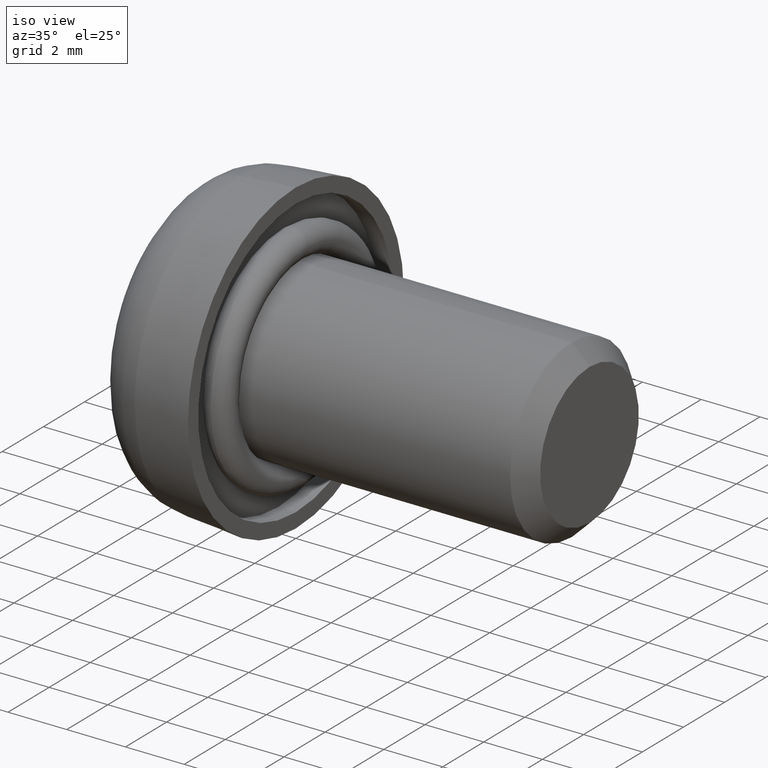
[diagram: clean part render]
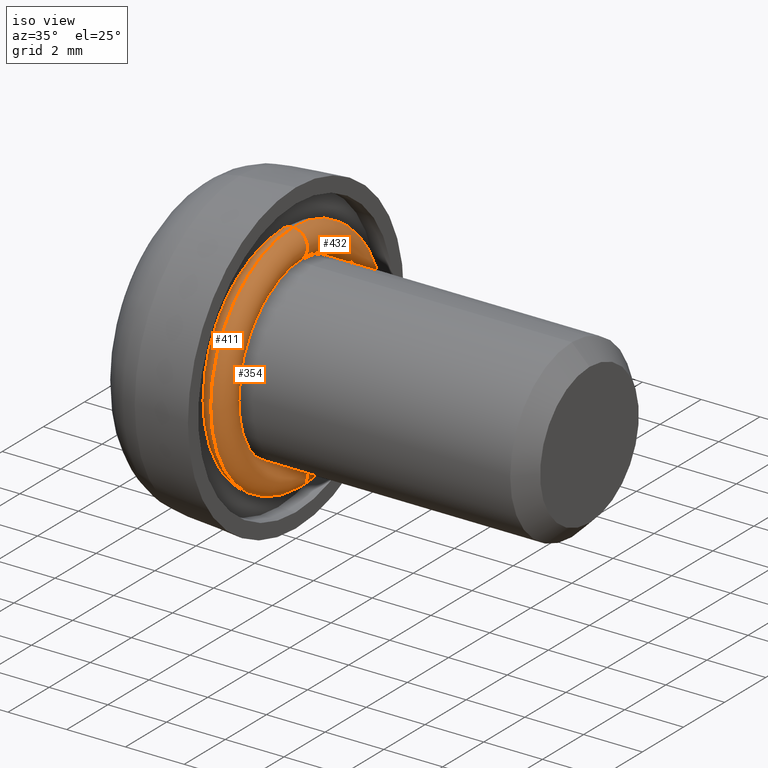
[diagram: same view with one multi-face feature highlighted, each face labeled with its STEP entity id]
A machine part, iso view. The highlighted faces form ONE feature: a constant-radius fillet chain: 3 tangent blend faces with common blend radius 0.5 mm. The faces share edges in the B-rep.
Their STEP definitions:
[1] entity #354 (Torus):
#1 = CARTESIAN_POINT ( 'NONE',  ( -0.1000000000000000500, 0.0000000000000000000, 0.0000000000000000000 ) ) ;
#46 = CIRCLE ( 'NONE', #1252, 0.5000000000000004400 ) ;
#49 = CIRCLE ( 'NONE', #525, 4.000000000000000900 ) ;
#69 = DIRECTION ( 'NONE',  ( 0.0000000000000000000, 0.0000000000000000000, -1.000000000000000000 ) ) ;
#74 = VERTEX_POINT ( 'NONE', #85 ) ;
#75 = CIRCLE ( 'NONE', #928, 3.000000000000000400 ) ;
#85 = CARTESIAN_POINT ( 'NONE',  ( -0.1000000000000000500, 0.0000000000000000000, -4.000000000000000900 ) ) ;
#116 = VERTEX_POINT ( 'NONE', #809 ) ;
#206 = FACE_OUTER_BOUND ( 'NONE', #916, .T. ) ;
#257 = VERTEX_POINT ( 'NONE', #1109 ) ;
#262 = DIRECTION ( 'NONE',  ( 1.000000000000000000, -0.0000000000000000000, -0.0000000000000000000 ) ) ;
#301 = EDGE_CURVE ( 'NONE', #116, #74, #49, .T. ) ;
#341 = CARTESIAN_POINT ( 'NONE',  ( -0.1000000000000000500, 0.0000000000000000000, 0.0000000000000000000 ) ) ;
#354 = ADVANCED_FACE ( 'NONE', ( #206 ), #516, .T. ) ;
#473 = DIRECTION ( 'NONE',  ( 0.0000000000000000000, 1.000000000000000000, -1.224646799147353200E-016 ) ) ;
#475 = EDGE_CURVE ( 'NONE', #1021, #257, #75, .T. ) ;
#476 = DIRECTION ( 'NONE',  ( 0.0000000000000000000, 0.0000000000000000000, -1.000000000000000000 ) ) ;
#509 = EDGE_CURVE ( 'NONE', #74, #257, #46, .T. ) ;
#516 = TOROIDAL_SURFACE ( 'NONE', #760, 3.500000000000000400, 0.5000000000000001100 ) ;
#525 = AXIS2_PLACEMENT_3D ( 'NONE', #341, #262, #896 ) ;
#552 = ORIENTED_EDGE ( 'NONE', *, *, #475, .F. ) ;
#629 = CIRCLE ( 'NONE', #1233, 0.5000000000000004400 ) ;
#651 = ORIENTED_EDGE ( 'NONE', *, *, #509, .T. ) ;
#702 = DIRECTION ( 'NONE',  ( 1.000000000000000000, -0.0000000000000000000, -0.0000000000000000000 ) ) ;
#760 = AXIS2_PLACEMENT_3D ( 'NONE', #1, #702, #830 ) ;
#809 = CARTESIAN_POINT ( 'NONE',  ( -0.1000000000000000500, 4.898587196589413800E-016, 4.000000000000000900 ) ) ;
#830 = DIRECTION ( 'NONE',  ( 0.0000000000000000000, 0.0000000000000000000, -1.000000000000000000 ) ) ;
#862 = CARTESIAN_POINT ( 'NONE',  ( -0.1000000000000001200, 0.0000000000000000000, 0.0000000000000000000 ) ) ;
#885 = CARTESIAN_POINT ( 'NONE',  ( -0.1000000000000000500, 0.0000000000000000000, -3.500000000000000400 ) ) ;
#896 = DIRECTION ( 'NONE',  ( 0.0000000000000000000, 0.0000000000000000000, -1.000000000000000000 ) ) ;
#897 = ORIENTED_EDGE ( 'NONE', *, *, #301, .T. ) ;
#916 = EDGE_LOOP ( 'NONE', ( #1157, #897, #651, #552 ) ) ;
#928 = AXIS2_PLACEMENT_3D ( 'NONE', #862, #1051, #476 ) ;
#939 = CARTESIAN_POINT ( 'NONE',  ( -0.1000000000000001200, 3.673940397442060400E-016, 3.000000000000000400 ) ) ;
#961 = EDGE_CURVE ( 'NONE', #116, #1021, #629, .T. ) ;
#1021 = VERTEX_POINT ( 'NONE', #939 ) ;
#1049 = DIRECTION ( 'NONE',  ( 0.0000000000000000000, 1.224646799147352500E-016, 1.000000000000000000 ) ) ;
#1051 = DIRECTION ( 'NONE',  ( 1.000000000000000000, -0.0000000000000000000, -0.0000000000000000000 ) ) ;
#1109 = CARTESIAN_POINT ( 'NONE',  ( -0.1000000000000001200, 0.0000000000000000000, -3.000000000000000400 ) ) ;
#1153 = CARTESIAN_POINT ( 'NONE',  ( -0.1000000000000000500, 4.286263797015737100E-016, 3.500000000000000400 ) ) ;
#1157 = ORIENTED_EDGE ( 'NONE', *, *, #961, .F. ) ;
#1196 = DIRECTION ( 'NONE',  ( -0.0000000000000000000, -1.000000000000000000, -0.0000000000000000000 ) ) ;
#1233 = AXIS2_PLACEMENT_3D ( 'NONE', #1153, #473, #1049 ) ;
#1252 = AXIS2_PLACEMENT_3D ( 'NONE', #885, #1196, #69 ) ;
[2] entity #411 (Torus):
#6 = FACE_OUTER_BOUND ( 'NONE', #349, .T. ) ;
#43 = DIRECTION ( 'NONE',  ( 0.0000000000000000000, 1.000000000000000000, -1.224646799147353200E-016 ) ) ;
#49 = CIRCLE ( 'NONE', #525, 4.000000000000000900 ) ;
#50 = ORIENTED_EDGE ( 'NONE', *, *, #67, .T. ) ;
#67 = EDGE_CURVE ( 'NONE', #257, #74, #501, .T. ) ;
#74 = VERTEX_POINT ( 'NONE', #85 ) ;
#75 = CIRCLE ( 'NONE', #928, 3.000000000000000400 ) ;
#85 = CARTESIAN_POINT ( 'NONE',  ( -0.1000000000000000500, 0.0000000000000000000, -4.000000000000000900 ) ) ;
#90 = AXIS2_PLACEMENT_3D ( 'NONE', #887, #43, #575 ) ;
#116 = VERTEX_POINT ( 'NONE', #809 ) ;
#154 = EDGE_CURVE ( 'NONE', #1021, #116, #1186, .T. ) ;
#257 = VERTEX_POINT ( 'NONE', #1109 ) ;
#262 = DIRECTION ( 'NONE',  ( 1.000000000000000000, -0.0000000000000000000, -0.0000000000000000000 ) ) ;
#301 = EDGE_CURVE ( 'NONE', #116, #74, #49, .T. ) ;
#313 = ORIENTED_EDGE ( 'NONE', *, *, #475, .T. ) ;
#341 = CARTESIAN_POINT ( 'NONE',  ( -0.1000000000000000500, 0.0000000000000000000, 0.0000000000000000000 ) ) ;
#349 = EDGE_LOOP ( 'NONE', ( #619, #1129, #313, #50 ) ) ;
#411 = ADVANCED_FACE ( 'NONE', ( #6 ), #534, .T. ) ;
#475 = EDGE_CURVE ( 'NONE', #1021, #257, #75, .T. ) ;
#476 = DIRECTION ( 'NONE',  ( 0.0000000000000000000, 0.0000000000000000000, -1.000000000000000000 ) ) ;
#491 = AXIS2_PLACEMENT_3D ( 'NONE', #705, #654, #1178 ) ;
#501 = CIRCLE ( 'NONE', #1132, 0.5000000000000004400 ) ;
#525 = AXIS2_PLACEMENT_3D ( 'NONE', #341, #262, #896 ) ;
#534 = TOROIDAL_SURFACE ( 'NONE', #491, 3.500000000000000400, 0.5000000000000001100 ) ;
#575 = DIRECTION ( 'NONE',  ( 0.0000000000000000000, 1.224646799147352500E-016, 1.000000000000000000 ) ) ;
#619 = ORIENTED_EDGE ( 'NONE', *, *, #301, .F. ) ;
#623 = DIRECTION ( 'NONE',  ( -0.0000000000000000000, -1.000000000000000000, -0.0000000000000000000 ) ) ;
#654 = DIRECTION ( 'NONE',  ( 1.000000000000000000, -0.0000000000000000000, -0.0000000000000000000 ) ) ;
#705 = CARTESIAN_POINT ( 'NONE',  ( -0.1000000000000000500, 0.0000000000000000000, 0.0000000000000000000 ) ) ;
#809 = CARTESIAN_POINT ( 'NONE',  ( -0.1000000000000000500, 4.898587196589413800E-016, 4.000000000000000900 ) ) ;
#862 = CARTESIAN_POINT ( 'NONE',  ( -0.1000000000000001200, 0.0000000000000000000, 0.0000000000000000000 ) ) ;
#887 = CARTESIAN_POINT ( 'NONE',  ( -0.1000000000000000500, 4.286263797015737100E-016, 3.500000000000000400 ) ) ;
#896 = DIRECTION ( 'NONE',  ( 0.0000000000000000000, 0.0000000000000000000, -1.000000000000000000 ) ) ;
#928 = AXIS2_PLACEMENT_3D ( 'NONE', #862, #1051, #476 ) ;
#939 = CARTESIAN_POINT ( 'NONE',  ( -0.1000000000000001200, 3.673940397442060400E-016, 3.000000000000000400 ) ) ;
#1002 = CARTESIAN_POINT ( 'NONE',  ( -0.1000000000000000500, 0.0000000000000000000, -3.500000000000000400 ) ) ;
#1021 = VERTEX_POINT ( 'NONE', #939 ) ;
#1051 = DIRECTION ( 'NONE',  ( 1.000000000000000000, -0.0000000000000000000, -0.0000000000000000000 ) ) ;
#1109 = CARTESIAN_POINT ( 'NONE',  ( -0.1000000000000001200, 0.0000000000000000000, -3.000000000000000400 ) ) ;
#1129 = ORIENTED_EDGE ( 'NONE', *, *, #154, .F. ) ;
#1132 = AXIS2_PLACEMENT_3D ( 'NONE', #1002, #623, #1292 ) ;
#1178 = DIRECTION ( 'NONE',  ( 0.0000000000000000000, 0.0000000000000000000, -1.000000000000000000 ) ) ;
#1186 = CIRCLE ( 'NONE', #90, 0.5000000000000004400 ) ;
#1292 = DIRECTION ( 'NONE',  ( 0.0000000000000000000, 0.0000000000000000000, -1.000000000000000000 ) ) ;
[3] entity #432 (Torus):
#23 = ORIENTED_EDGE ( 'NONE', *, *, #961, .T. ) ;
#46 = CIRCLE ( 'NONE', #1252, 0.5000000000000004400 ) ;
#69 = DIRECTION ( 'NONE',  ( 0.0000000000000000000, 0.0000000000000000000, -1.000000000000000000 ) ) ;
#74 = VERTEX_POINT ( 'NONE', #85 ) ;
#85 = CARTESIAN_POINT ( 'NONE',  ( -0.1000000000000000500, 0.0000000000000000000, -4.000000000000000900 ) ) ;
#88 = CARTESIAN_POINT ( 'NONE',  ( -0.1000000000000001200, 0.0000000000000000000, 0.0000000000000000000 ) ) ;
#116 = VERTEX_POINT ( 'NONE', #809 ) ;
#150 = AXIS2_PLACEMENT_3D ( 'NONE', #88, #822, #185 ) ;
#160 = FACE_OUTER_BOUND ( 'NONE', #949, .T. ) ;
#176 = CIRCLE ( 'NONE', #521, 4.000000000000000900 ) ;
#185 = DIRECTION ( 'NONE',  ( 0.0000000000000000000, 0.0000000000000000000, -1.000000000000000000 ) ) ;
#200 = EDGE_CURVE ( 'NONE', #257, #1021, #1156, .T. ) ;
#233 = DIRECTION ( 'NONE',  ( 0.0000000000000000000, 0.0000000000000000000, -1.000000000000000000 ) ) ;
#257 = VERTEX_POINT ( 'NONE', #1109 ) ;
#266 = CARTESIAN_POINT ( 'NONE',  ( -0.1000000000000000500, 0.0000000000000000000, 0.0000000000000000000 ) ) ;
#295 = AXIS2_PLACEMENT_3D ( 'NONE', #979, #1247, #233 ) ;
#380 = DIRECTION ( 'NONE',  ( 1.000000000000000000, -0.0000000000000000000, -0.0000000000000000000 ) ) ;
#432 = ADVANCED_FACE ( 'NONE', ( #160 ), #438, .T. ) ;
#438 = TOROIDAL_SURFACE ( 'NONE', #295, 3.500000000000000400, 0.5000000000000001100 ) ;
#473 = DIRECTION ( 'NONE',  ( 0.0000000000000000000, 1.000000000000000000, -1.224646799147353200E-016 ) ) ;
#509 = EDGE_CURVE ( 'NONE', #74, #257, #46, .T. ) ;
#521 = AXIS2_PLACEMENT_3D ( 'NONE', #266, #380, #893 ) ;
#584 = ORIENTED_EDGE ( 'NONE', *, *, #200, .F. ) ;
#629 = CIRCLE ( 'NONE', #1233, 0.5000000000000004400 ) ;
#634 = ORIENTED_EDGE ( 'NONE', *, *, #509, .F. ) ;
#672 = EDGE_CURVE ( 'NONE', #74, #116, #176, .T. ) ;
#809 = CARTESIAN_POINT ( 'NONE',  ( -0.1000000000000000500, 4.898587196589413800E-016, 4.000000000000000900 ) ) ;
#815 = ORIENTED_EDGE ( 'NONE', *, *, #672, .T. ) ;
#822 = DIRECTION ( 'NONE',  ( 1.000000000000000000, -0.0000000000000000000, -0.0000000000000000000 ) ) ;
#885 = CARTESIAN_POINT ( 'NONE',  ( -0.1000000000000000500, 0.0000000000000000000, -3.500000000000000400 ) ) ;
#893 = DIRECTION ( 'NONE',  ( 0.0000000000000000000, 0.0000000000000000000, -1.000000000000000000 ) ) ;
#939 = CARTESIAN_POINT ( 'NONE',  ( -0.1000000000000001200, 3.673940397442060400E-016, 3.000000000000000400 ) ) ;
#949 = EDGE_LOOP ( 'NONE', ( #634, #815, #23, #584 ) ) ;
#961 = EDGE_CURVE ( 'NONE', #116, #1021, #629, .T. ) ;
#979 = CARTESIAN_POINT ( 'NONE',  ( -0.1000000000000000500, 0.0000000000000000000, 0.0000000000000000000 ) ) ;
#1021 = VERTEX_POINT ( 'NONE', #939 ) ;
#1049 = DIRECTION ( 'NONE',  ( 0.0000000000000000000, 1.224646799147352500E-016, 1.000000000000000000 ) ) ;
#1109 = CARTESIAN_POINT ( 'NONE',  ( -0.1000000000000001200, 0.0000000000000000000, -3.000000000000000400 ) ) ;
#1153 = CARTESIAN_POINT ( 'NONE',  ( -0.1000000000000000500, 4.286263797015737100E-016, 3.500000000000000400 ) ) ;
#1156 = CIRCLE ( 'NONE', #150, 3.000000000000000400 ) ;
#1196 = DIRECTION ( 'NONE',  ( -0.0000000000000000000, -1.000000000000000000, -0.0000000000000000000 ) ) ;
#1233 = AXIS2_PLACEMENT_3D ( 'NONE', #1153, #473, #1049 ) ;
#1247 = DIRECTION ( 'NONE',  ( 1.000000000000000000, -0.0000000000000000000, -0.0000000000000000000 ) ) ;
#1252 = AXIS2_PLACEMENT_3D ( 'NONE', #885, #1196, #69 ) ;